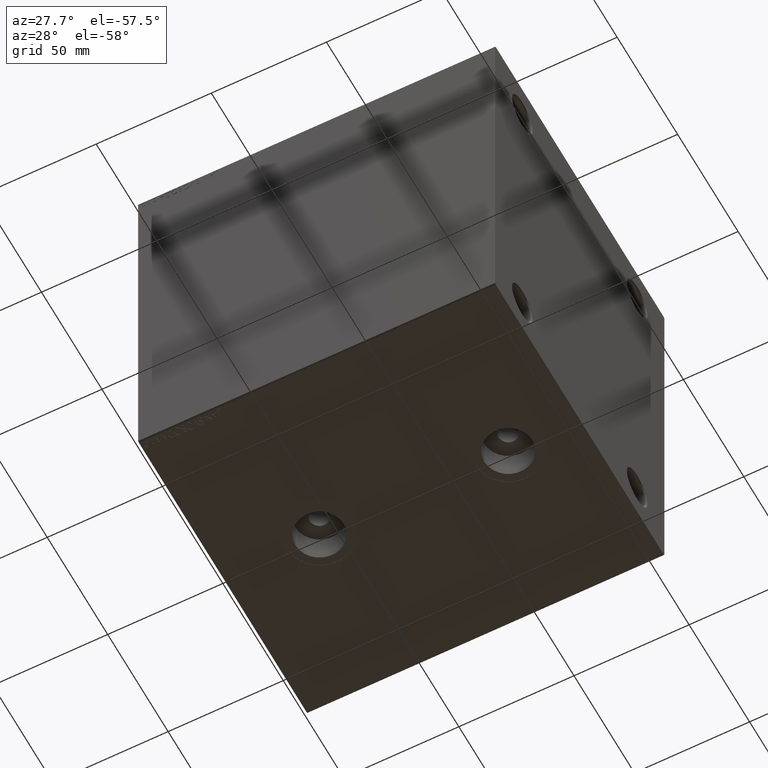
[diagram: clean part render]
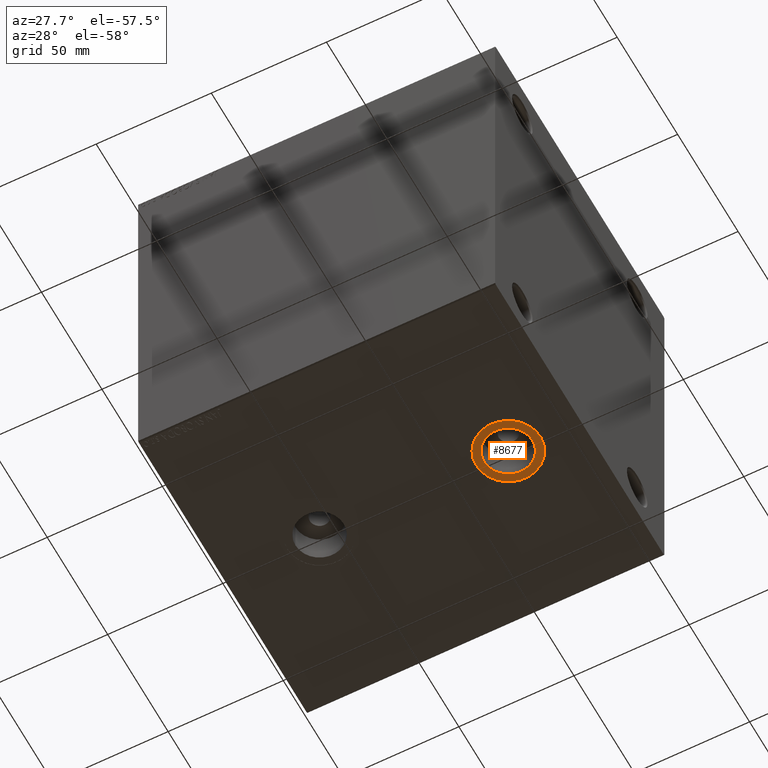
[diagram: same view with one face highlighted and labeled with its STEP entity id]
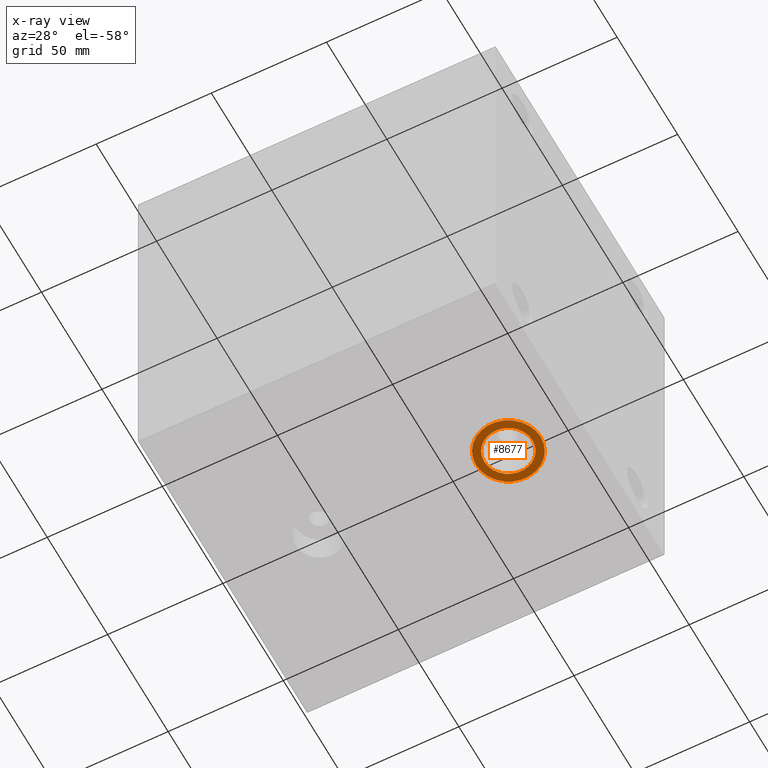
[diagram: x-ray of the same camera — body ghosted, the highlighted face saturated]
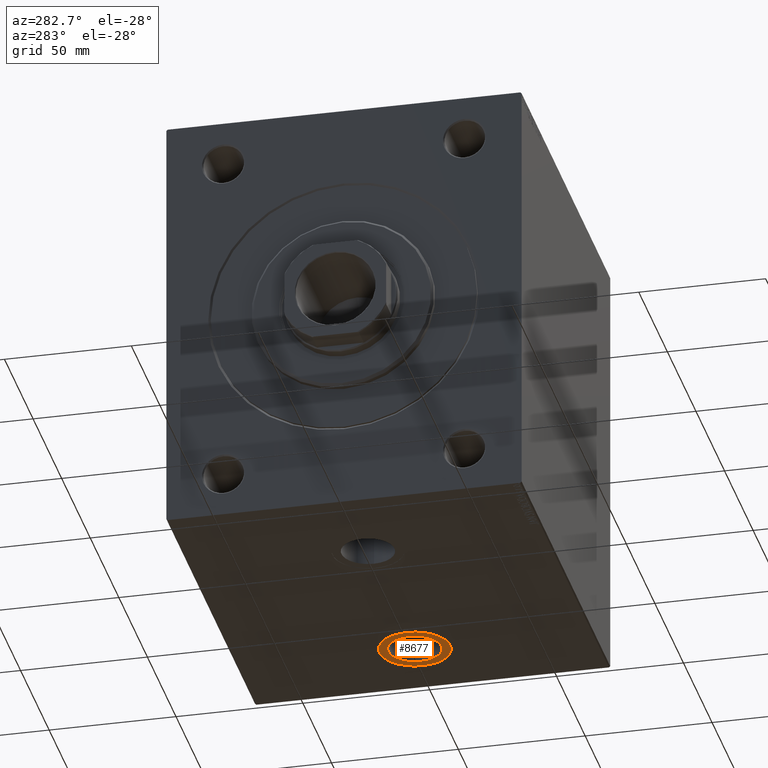
[diagram: same view with one face highlighted and labeled with its STEP entity id]
A machine part, auxiliary view. The second image highlights one B-rep face of the part: STEP entity #8677.
The next image is the same camera in x-ray: the body ghosted, the highlighted face saturated — about 0% of this face is hidden behind the body in this view.
A second angle (auxiliary view) of the same face is appended — the face is thin or edge-on in the first view.
In plain terms, the highlighted planar face has unit normal (0, 0, -1).
Its self-contained STEP definition (entity closure, byte-faithful):
#519 = DIRECTION ( 'NONE',  ( 0.000000000000000000, 0.000000000000000000, -1.000000000000000000 ) ) ;
#1428 = CARTESIAN_POINT ( 'NONE',  ( 123.9999999999999858, -1.272749711318452810E-14, -84.90000000000000568 ) ) ;
#1929 = CIRCLE ( 'NONE', #8589, 10.48000000000000398 ) ;
#3997 = EDGE_CURVE ( 'NONE', #29289, #13315, #1929, .T. ) ;
#4983 = CIRCLE ( 'NONE', #30788, 13.99999999999999822 ) ;
#6379 = EDGE_CURVE ( 'NONE', #43913, #27409, #4983, .T. ) ;
#6667 = CARTESIAN_POINT ( 'NONE',  ( 113.5199999999999818, -1.272749711318452810E-14, -84.90000000000000568 ) ) ;
#7026 = CARTESIAN_POINT ( 'NONE',  ( 123.9999999999999858, -1.272749711318452810E-14, -84.90000000000000568 ) ) ;
#7257 = CARTESIAN_POINT ( 'NONE',  ( 134.4799999999999898, -1.144406726767810103E-14, -84.90000000000000568 ) ) ;
#8589 = AXIS2_PLACEMENT_3D ( 'NONE', #23991, #38110, #45737 ) ;
#8677 = ADVANCED_FACE ( 'NONE', ( #29132, #43477 ), #25901, .T. ) ;
#8983 = CIRCLE ( 'NONE', #38524, 10.48000000000000398 ) ;
#11812 = ORIENTED_EDGE ( 'NONE', *, *, #3997, .F. ) ;
#13315 = VERTEX_POINT ( 'NONE', #7257 ) ;
#17923 = CARTESIAN_POINT ( 'NONE',  ( 137.9999999999999716, -1.101299159437823287E-14, -84.90000000000000568 ) ) ;
#19000 = EDGE_LOOP ( 'NONE', ( #19617, #24703 ) ) ;
#19416 = EDGE_CURVE ( 'NONE', #13315, #29289, #8983, .T. ) ;
#19617 = ORIENTED_EDGE ( 'NONE', *, *, #6379, .T. ) ;
#19632 = CARTESIAN_POINT ( 'NONE',  ( 123.9999999999999858, -1.272749711318452810E-14, -84.90000000000000568 ) ) ;
#20077 = AXIS2_PLACEMENT_3D ( 'NONE', #19632, #33730, #32262 ) ;
#20331 = EDGE_CURVE ( 'NONE', #27409, #43913, #42246, .T. ) ;
#23991 = CARTESIAN_POINT ( 'NONE',  ( 123.9999999999999858, -1.272749711318452810E-14, -84.90000000000000568 ) ) ;
#24703 = ORIENTED_EDGE ( 'NONE', *, *, #20331, .T. ) ;
#25224 = CARTESIAN_POINT ( 'NONE',  ( 123.9999999999999858, -1.272749711318452810E-14, -84.90000000000000568 ) ) ;
#25506 = ORIENTED_EDGE ( 'NONE', *, *, #19416, .F. ) ;
#25781 = AXIS2_PLACEMENT_3D ( 'NONE', #1428, #519, #28677 ) ;
#25901 = PLANE ( 'NONE',  #25781 ) ;
#27353 = EDGE_LOOP ( 'NONE', ( #11812, #25506 ) ) ;
#27409 = VERTEX_POINT ( 'NONE', #17923 ) ;
#27697 = DIRECTION ( 'NONE',  ( -1.000000000000000000, 0.000000000000000000, 0.000000000000000000 ) ) ;
#28033 = DIRECTION ( 'NONE',  ( 0.000000000000000000, 0.000000000000000000, -1.000000000000000000 ) ) ;
#28677 = DIRECTION ( 'NONE',  ( -1.000000000000000000, 0.000000000000000000, -0.000000000000000000 ) ) ;
#29132 = FACE_BOUND ( 'NONE', #27353, .T. ) ;
#29289 = VERTEX_POINT ( 'NONE', #6667 ) ;
#30788 = AXIS2_PLACEMENT_3D ( 'NONE', #7026, #28033, #34542 ) ;
#31482 = DIRECTION ( 'NONE',  ( 0.000000000000000000, 0.000000000000000000, -1.000000000000000000 ) ) ;
#32262 = DIRECTION ( 'NONE',  ( -1.000000000000000000, 0.000000000000000000, 0.000000000000000000 ) ) ;
#33730 = DIRECTION ( 'NONE',  ( 0.000000000000000000, 0.000000000000000000, -1.000000000000000000 ) ) ;
#34542 = DIRECTION ( 'NONE',  ( -1.000000000000000000, 0.000000000000000000, 0.000000000000000000 ) ) ;
#36217 = CARTESIAN_POINT ( 'NONE',  ( 109.9999999999999858, -1.272749711318452810E-14, -84.90000000000000568 ) ) ;
#38110 = DIRECTION ( 'NONE',  ( 0.000000000000000000, 0.000000000000000000, -1.000000000000000000 ) ) ;
#38524 = AXIS2_PLACEMENT_3D ( 'NONE', #25224, #31482, #27697 ) ;
#42246 = CIRCLE ( 'NONE', #20077, 13.99999999999999822 ) ;
#43477 = FACE_OUTER_BOUND ( 'NONE', #19000, .T. ) ;
#43913 = VERTEX_POINT ( 'NONE', #36217 ) ;
#45737 = DIRECTION ( 'NONE',  ( -1.000000000000000000, 0.000000000000000000, 0.000000000000000000 ) ) ;